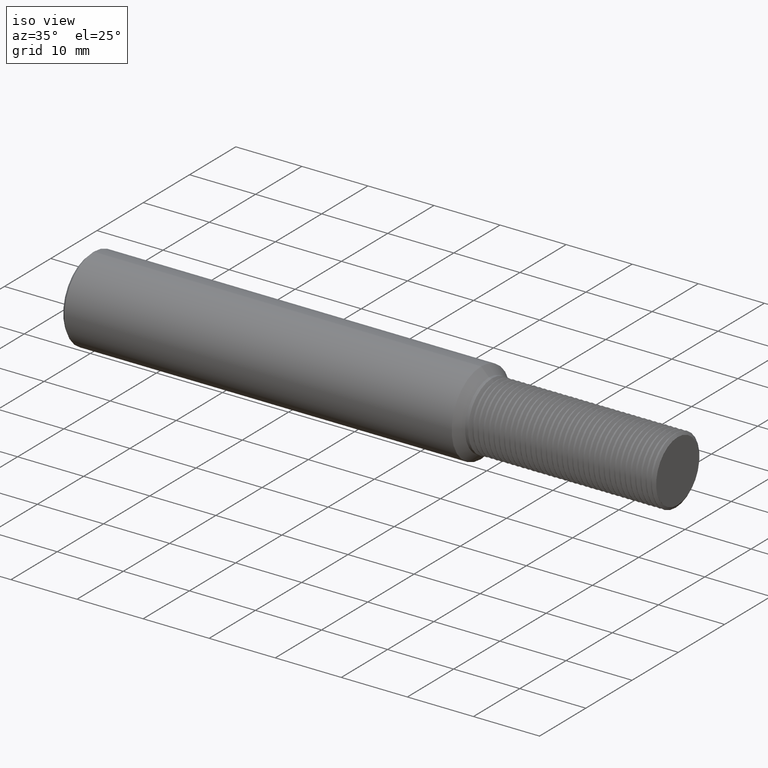
[diagram: clean part render]
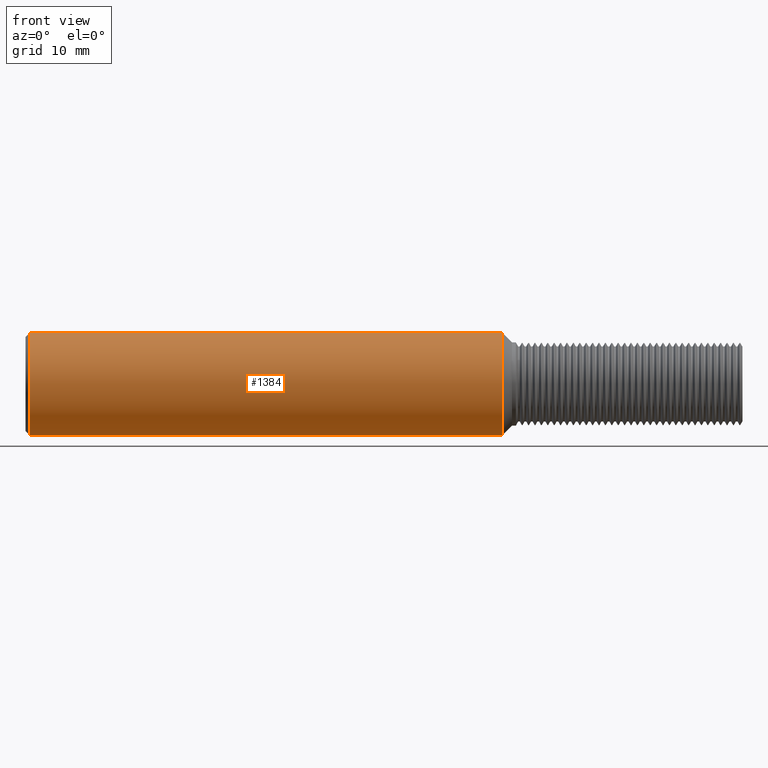
[diagram: tour spotlight — one face highlighted and labeled with its STEP entity id]
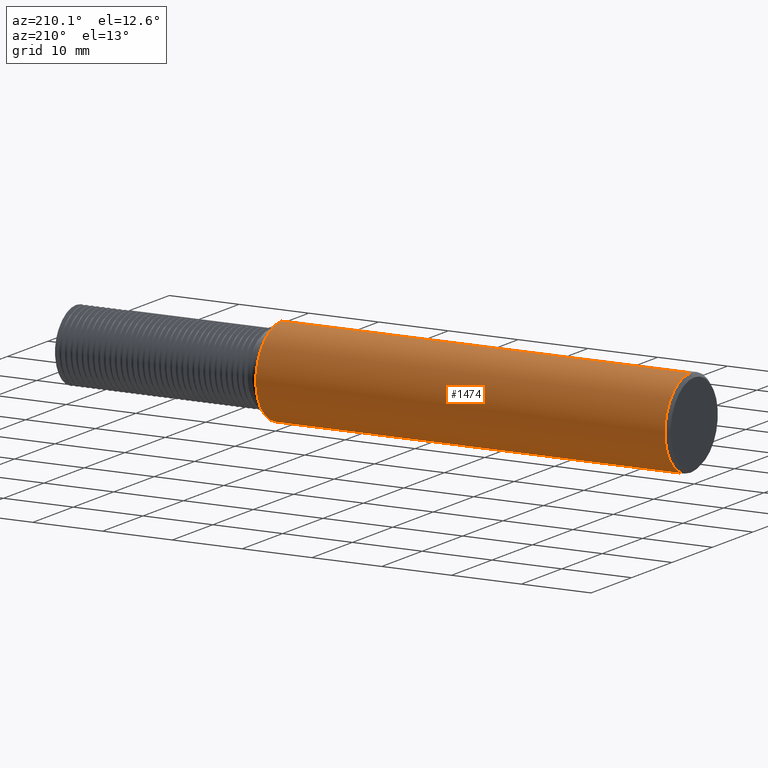
[diagram: tour spotlight — one face highlighted and labeled with its STEP entity id]
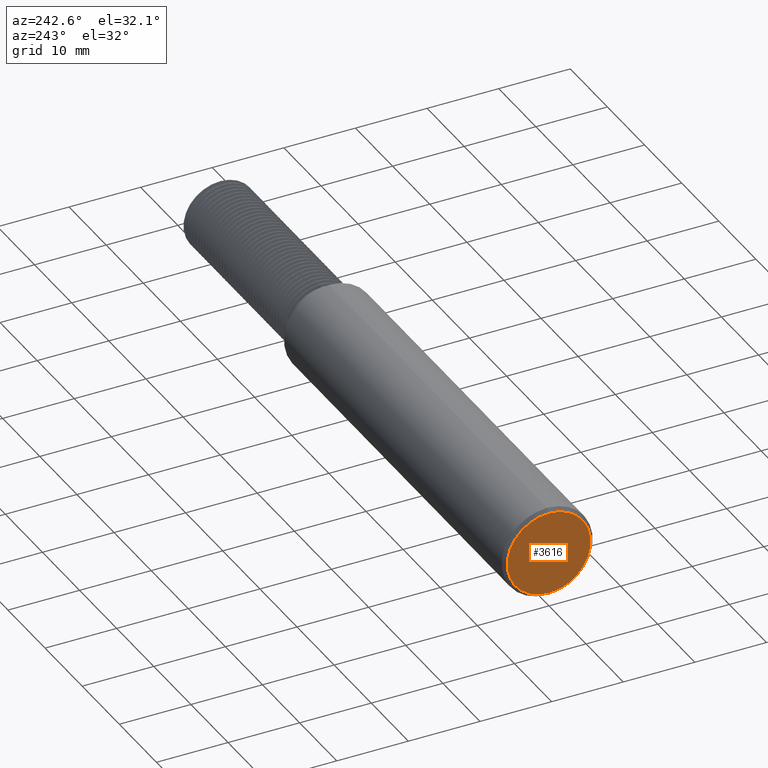
[diagram: tour spotlight — one face highlighted and labeled with its STEP entity id]
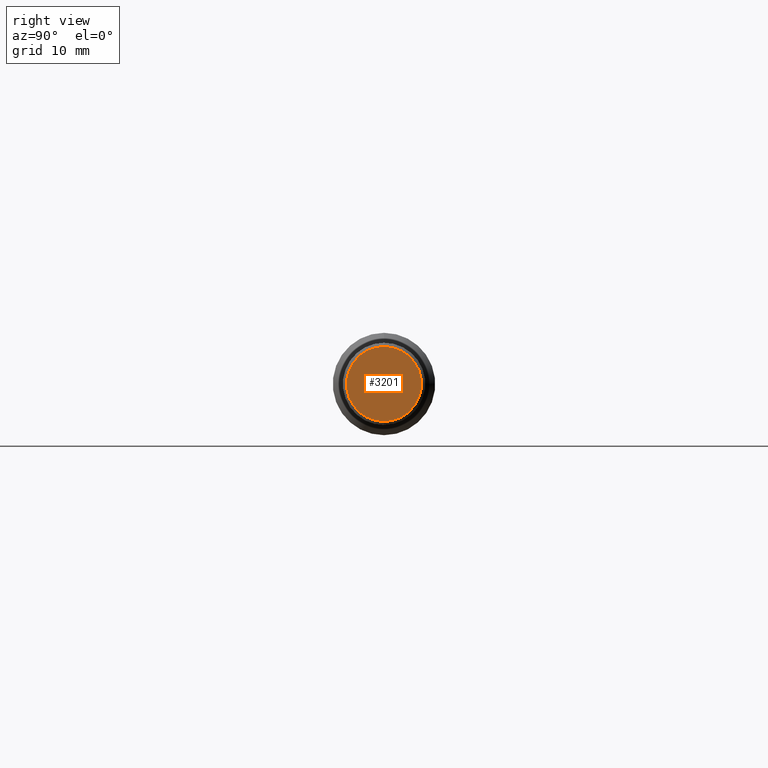
[diagram: tour spotlight — one face highlighted and labeled with its STEP entity id]
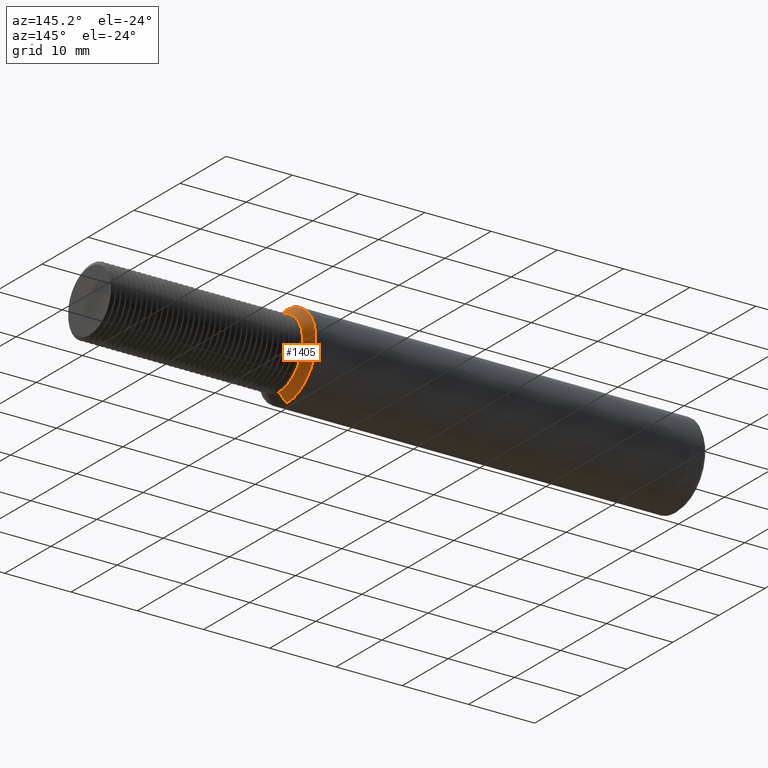
[diagram: tour spotlight — one face highlighted and labeled with its STEP entity id]
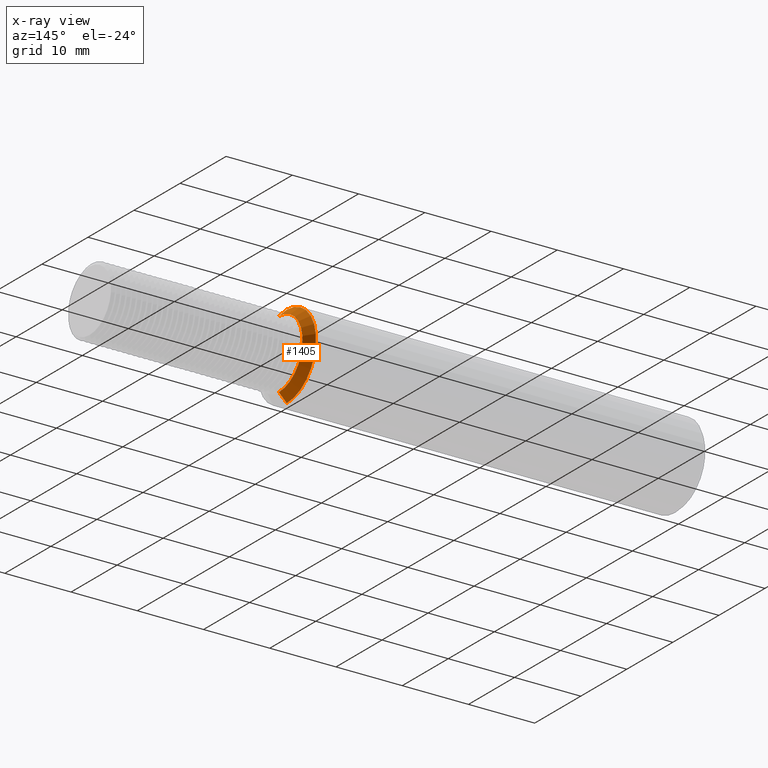
[diagram: x-ray of the same camera — body ghosted, this tour face saturated]
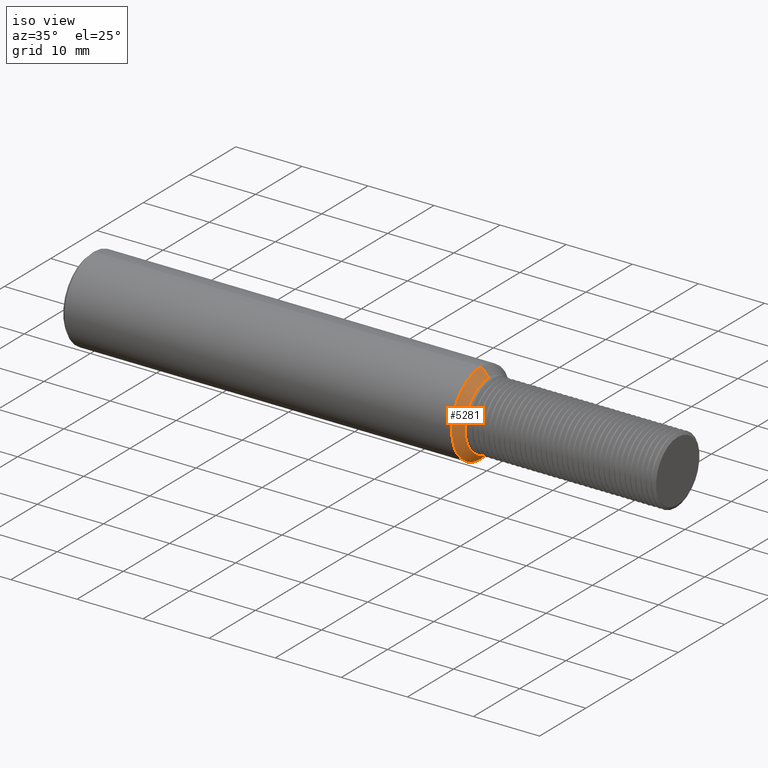
[diagram: tour spotlight — one face highlighted and labeled with its STEP entity id]
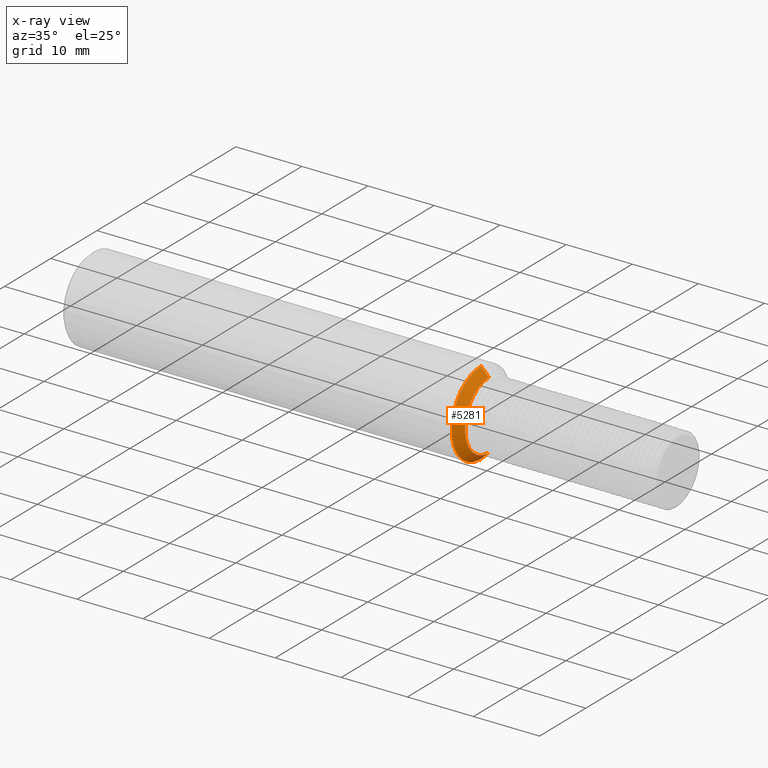
[diagram: x-ray of the same camera — body ghosted, this tour face saturated]
A machine part: a face-by-face anatomy tour. The part has 294 B-rep faces; the first image is the clean iso view, then the 6 largest visible faces are spotlighted one at a time (largest first), each with its STEP entity span.

Face 1 — front view, entity #1384. In plain terms, the highlighted cylindrical surface (partial cylindrical patch) has radius 6.3462 mm, axis along (-1, -0, -0).
Definition (entity closure, byte-faithful):
#20 = ORIENTED_EDGE ( 'NONE', *, *, #6231, .T. ) ;
#340 = DIRECTION ( 'NONE',  ( 0.000000000000000000, 0.000000000000000000, 1.000000000000000000 ) ) ;
#411 = FACE_OUTER_BOUND ( 'NONE', #6787, .T. ) ;
#517 = CARTESIAN_POINT ( 'NONE',  ( 0.000000000000000000, 0.000000000000000000, 0.2498499999999999888 ) ) ;
#588 = EDGE_CURVE ( 'NONE', #4362, #5510, #7309, .T. ) ;
#894 = CARTESIAN_POINT ( 'NONE',  ( 0.02000000000000009409, 0.000000000000000000, 0.000000000000000000 ) ) ;
#950 = DIRECTION ( 'NONE',  ( 0.000000000000000000, 0.000000000000000000, 1.000000000000000000 ) ) ;
#1120 = CARTESIAN_POINT ( 'NONE',  ( 0.000000000000000000, 3.059780027669661931E-17, -0.2498499999999999888 ) ) ;
#1384 = ADVANCED_FACE ( 'NONE', ( #411 ), #6675, .T. ) ;
#1386 = VERTEX_POINT ( 'NONE', #5570 ) ;
#1481 = AXIS2_PLACEMENT_3D ( 'NONE', #2731, #3296, #340 ) ;
#1490 = AXIS2_PLACEMENT_3D ( 'NONE', #5613, #2052, #950 ) ;
#1873 = CARTESIAN_POINT ( 'NONE',  ( 0.02000000000000009409, 0.000000000000000000, -0.2498499999999999888 ) ) ;
#2052 = DIRECTION ( 'NONE',  ( -1.000000000000000000, -0.000000000000000000, -0.000000000000000000 ) ) ;
#2099 = CIRCLE ( 'NONE', #1490, 0.2498499999999999888 ) ;
#2139 = EDGE_CURVE ( 'NONE', #6442, #5510, #7051, .T. ) ;
#2182 = DIRECTION ( 'NONE',  ( -1.000000000000000000, -0.000000000000000000, -0.000000000000000000 ) ) ;
#2406 = ORIENTED_EDGE ( 'NONE', *, *, #2139, .T. ) ;
#2731 = CARTESIAN_POINT ( 'NONE',  ( 0.000000000000000000, 0.000000000000000000, 0.000000000000000000 ) ) ;
#3296 = DIRECTION ( 'NONE',  ( -1.000000000000000000, -0.000000000000000000, -0.000000000000000000 ) ) ;
#3840 = DIRECTION ( 'NONE',  ( 0.000000000000000000, 0.000000000000000000, -1.000000000000000000 ) ) ;
#3845 = AXIS2_PLACEMENT_3D ( 'NONE', #894, #4846, #3840 ) ;
#4362 = VERTEX_POINT ( 'NONE', #5284 ) ;
#4846 = DIRECTION ( 'NONE',  ( 1.000000000000000000, 0.000000000000000000, 0.000000000000000000 ) ) ;
#5284 = CARTESIAN_POINT ( 'NONE',  ( 2.328149999999999942, 3.059780027669661931E-17, -0.2498499999999999888 ) ) ;
#5510 = VERTEX_POINT ( 'NONE', #1873 ) ;
#5570 = CARTESIAN_POINT ( 'NONE',  ( 2.328149999999999942, 0.000000000000000000, 0.2498499999999999888 ) ) ;
#5613 = CARTESIAN_POINT ( 'NONE',  ( 2.328149999999999942, 0.000000000000000000, 0.000000000000000000 ) ) ;
#5641 = LINE ( 'NONE', #517, #7118 ) ;
#5684 = CARTESIAN_POINT ( 'NONE',  ( 0.02000000000000009409, 3.059780027669661931E-17, 0.2498499999999999888 ) ) ;
#5718 = DIRECTION ( 'NONE',  ( -1.000000000000000000, -0.000000000000000000, -0.000000000000000000 ) ) ;
#6231 = EDGE_CURVE ( 'NONE', #4362, #1386, #2099, .T. ) ;
#6232 = ORIENTED_EDGE ( 'NONE', *, *, #588, .F. ) ;
#6442 = VERTEX_POINT ( 'NONE', #5684 ) ;
#6675 = CYLINDRICAL_SURFACE ( 'NONE', #1481, 0.2498499999999999888 ) ;
#6787 = EDGE_LOOP ( 'NONE', ( #6232, #20, #7048, #2406 ) ) ;
#7048 = ORIENTED_EDGE ( 'NONE', *, *, #7336, .T. ) ;
#7051 = CIRCLE ( 'NONE', #3845, 0.2498499999999999888 ) ;
#7118 = VECTOR ( 'NONE', #5718, 39.37007874015748143 ) ;
#7180 = VECTOR ( 'NONE', #2182, 39.37007874015748143 ) ;
#7309 = LINE ( 'NONE', #1120, #7180 ) ;
#7336 = EDGE_CURVE ( 'NONE', #1386, #6442, #5641, .T. ) ;

Face 2 — auxiliary view, entity #1474. In plain terms, the highlighted cylindrical surface (partial cylindrical patch) has radius 6.3462 mm, axis along (-1, -0, -0).
Definition (entity closure, byte-faithful):
#374 = CIRCLE ( 'NONE', #3031, 0.2498499999999999888 ) ;
#517 = CARTESIAN_POINT ( 'NONE',  ( 0.000000000000000000, 0.000000000000000000, 0.2498499999999999888 ) ) ;
#521 = CARTESIAN_POINT ( 'NONE',  ( 0.000000000000000000, 0.000000000000000000, 0.000000000000000000 ) ) ;
#582 = ORIENTED_EDGE ( 'NONE', *, *, #588, .T. ) ;
#588 = EDGE_CURVE ( 'NONE', #4362, #5510, #7309, .T. ) ;
#1120 = CARTESIAN_POINT ( 'NONE',  ( 0.000000000000000000, 3.059780027669661931E-17, -0.2498499999999999888 ) ) ;
#1254 = CIRCLE ( 'NONE', #5454, 0.2498499999999999888 ) ;
#1386 = VERTEX_POINT ( 'NONE', #5570 ) ;
#1474 = ADVANCED_FACE ( 'NONE', ( #6336 ), #2393, .T. ) ;
#1873 = CARTESIAN_POINT ( 'NONE',  ( 0.02000000000000009409, 0.000000000000000000, -0.2498499999999999888 ) ) ;
#2182 = DIRECTION ( 'NONE',  ( -1.000000000000000000, -0.000000000000000000, -0.000000000000000000 ) ) ;
#2247 = DIRECTION ( 'NONE',  ( -1.000000000000000000, -0.000000000000000000, -0.000000000000000000 ) ) ;
#2307 = EDGE_LOOP ( 'NONE', ( #2876, #582, #7320, #5963 ) ) ;
#2393 = CYLINDRICAL_SURFACE ( 'NONE', #5560, 0.2498499999999999888 ) ;
#2876 = ORIENTED_EDGE ( 'NONE', *, *, #7158, .T. ) ;
#3031 = AXIS2_PLACEMENT_3D ( 'NONE', #3825, #6091, #6910 ) ;
#3475 = EDGE_CURVE ( 'NONE', #5510, #6442, #374, .T. ) ;
#3507 = DIRECTION ( 'NONE',  ( 0.000000000000000000, 0.000000000000000000, 1.000000000000000000 ) ) ;
#3825 = CARTESIAN_POINT ( 'NONE',  ( 0.02000000000000009409, 0.000000000000000000, 0.000000000000000000 ) ) ;
#4362 = VERTEX_POINT ( 'NONE', #5284 ) ;
#5284 = CARTESIAN_POINT ( 'NONE',  ( 2.328149999999999942, 3.059780027669661931E-17, -0.2498499999999999888 ) ) ;
#5454 = AXIS2_PLACEMENT_3D ( 'NONE', #7264, #2247, #6797 ) ;
#5510 = VERTEX_POINT ( 'NONE', #1873 ) ;
#5560 = AXIS2_PLACEMENT_3D ( 'NONE', #521, #6826, #3507 ) ;
#5570 = CARTESIAN_POINT ( 'NONE',  ( 2.328149999999999942, 0.000000000000000000, 0.2498499999999999888 ) ) ;
#5641 = LINE ( 'NONE', #517, #7118 ) ;
#5684 = CARTESIAN_POINT ( 'NONE',  ( 0.02000000000000009409, 3.059780027669661931E-17, 0.2498499999999999888 ) ) ;
#5718 = DIRECTION ( 'NONE',  ( -1.000000000000000000, -0.000000000000000000, -0.000000000000000000 ) ) ;
#5963 = ORIENTED_EDGE ( 'NONE', *, *, #7336, .F. ) ;
#6091 = DIRECTION ( 'NONE',  ( 1.000000000000000000, 0.000000000000000000, 0.000000000000000000 ) ) ;
#6336 = FACE_OUTER_BOUND ( 'NONE', #2307, .T. ) ;
#6442 = VERTEX_POINT ( 'NONE', #5684 ) ;
#6797 = DIRECTION ( 'NONE',  ( 0.000000000000000000, 0.000000000000000000, 1.000000000000000000 ) ) ;
#6826 = DIRECTION ( 'NONE',  ( -1.000000000000000000, -0.000000000000000000, -0.000000000000000000 ) ) ;
#6910 = DIRECTION ( 'NONE',  ( 0.000000000000000000, 0.000000000000000000, -1.000000000000000000 ) ) ;
#7118 = VECTOR ( 'NONE', #5718, 39.37007874015748143 ) ;
#7158 = EDGE_CURVE ( 'NONE', #1386, #4362, #1254, .T. ) ;
#7180 = VECTOR ( 'NONE', #2182, 39.37007874015748143 ) ;
#7264 = CARTESIAN_POINT ( 'NONE',  ( 2.328149999999999942, 0.000000000000000000, 0.000000000000000000 ) ) ;
#7309 = LINE ( 'NONE', #1120, #7180 ) ;
#7320 = ORIENTED_EDGE ( 'NONE', *, *, #3475, .T. ) ;
#7336 = EDGE_CURVE ( 'NONE', #1386, #6442, #5641, .T. ) ;

Face 3 — auxiliary view, entity #3616. In plain terms, the highlighted planar face has unit normal (1, 0, 0).
Definition (entity closure, byte-faithful):
#21 = VERTEX_POINT ( 'NONE', #3710 ) ;
#891 = DIRECTION ( 'NONE',  ( 0.000000000000000000, 0.000000000000000000, -1.000000000000000000 ) ) ;
#932 = EDGE_CURVE ( 'NONE', #3416, #21, #2320, .T. ) ;
#973 = EDGE_LOOP ( 'NONE', ( #2195, #6402 ) ) ;
#1599 = CARTESIAN_POINT ( 'NONE',  ( 0.000000000000000000, 0.000000000000000000, 0.000000000000000000 ) ) ;
#1669 = CARTESIAN_POINT ( 'NONE',  ( 0.000000000000000000, 0.000000000000000000, 0.000000000000000000 ) ) ;
#1708 = DIRECTION ( 'NONE',  ( 1.000000000000000000, 0.000000000000000000, 0.000000000000000000 ) ) ;
#1817 = PLANE ( 'NONE',  #3037 ) ;
#2106 = CARTESIAN_POINT ( 'NONE',  ( 0.000000000000000000, 0.000000000000000000, 0.000000000000000000 ) ) ;
#2195 = ORIENTED_EDGE ( 'NONE', *, *, #4489, .T. ) ;
#2229 = CIRCLE ( 'NONE', #6992, 0.2298500000000002763 ) ;
#2320 = CIRCLE ( 'NONE', #6483, 0.2298500000000002763 ) ;
#3037 = AXIS2_PLACEMENT_3D ( 'NONE', #1669, #1708, #4011 ) ;
#3416 = VERTEX_POINT ( 'NONE', #4987 ) ;
#3616 = ADVANCED_FACE ( 'NONE', ( #5160 ), #1817, .F. ) ;
#3686 = DIRECTION ( 'NONE',  ( -1.000000000000000000, -0.000000000000000000, -0.000000000000000000 ) ) ;
#3710 = CARTESIAN_POINT ( 'NONE',  ( 0.000000000000000000, 0.000000000000000000, -0.2298500000000002763 ) ) ;
#4011 = DIRECTION ( 'NONE',  ( 0.000000000000000000, 0.000000000000000000, -1.000000000000000000 ) ) ;
#4489 = EDGE_CURVE ( 'NONE', #21, #3416, #2229, .T. ) ;
#4987 = CARTESIAN_POINT ( 'NONE',  ( 0.000000000000000000, 2.937315347754928730E-17, 0.2298500000000002763 ) ) ;
#5160 = FACE_OUTER_BOUND ( 'NONE', #973, .T. ) ;
#6402 = ORIENTED_EDGE ( 'NONE', *, *, #932, .T. ) ;
#6483 = AXIS2_PLACEMENT_3D ( 'NONE', #2106, #3686, #891 ) ;
#6618 = DIRECTION ( 'NONE',  ( -1.000000000000000000, -0.000000000000000000, -0.000000000000000000 ) ) ;
#6656 = DIRECTION ( 'NONE',  ( 0.000000000000000000, 0.000000000000000000, -1.000000000000000000 ) ) ;
#6992 = AXIS2_PLACEMENT_3D ( 'NONE', #1599, #6618, #6656 ) ;

Face 4 — right view, entity #3201. In plain terms, the highlighted planar face has unit normal (-1, 0, -0).
Definition (entity closure, byte-faithful):
#307 = CIRCLE ( 'NONE', #1879, 0.1828615869927601167 ) ;
#501 = DIRECTION ( 'NONE',  ( 0.000000000000000000, 0.000000000000000000, 1.000000000000000000 ) ) ;
#1161 = ORIENTED_EDGE ( 'NONE', *, *, #5433, .F. ) ;
#1372 = VERTEX_POINT ( 'NONE', #4421 ) ;
#1879 = AXIS2_PLACEMENT_3D ( 'NONE', #7340, #6211, #501 ) ;
#2792 = DIRECTION ( 'NONE',  ( -0.000000000000000000, 0.000000000000000000, 1.000000000000000000 ) ) ;
#3201 = ADVANCED_FACE ( 'NONE', ( #6290 ), #4518, .F. ) ;
#4179 = CARTESIAN_POINT ( 'NONE',  ( 3.500000000000000000, 0.000000000000000000, 0.000000000000000000 ) ) ;
#4317 = ORIENTED_EDGE ( 'NONE', *, *, #7015, .F. ) ;
#4409 = EDGE_LOOP ( 'NONE', ( #4317, #1161 ) ) ;
#4421 = CARTESIAN_POINT ( 'NONE',  ( 3.500000000000000000, 2.239408571976889543E-17, -0.1828615869927601167 ) ) ;
#4518 = PLANE ( 'NONE',  #4834 ) ;
#4628 = CARTESIAN_POINT ( 'NONE',  ( 3.500000000000000000, 0.2030000000000000138, 0.000000000000000000 ) ) ;
#4729 = CIRCLE ( 'NONE', #5682, 0.1828615869927601167 ) ;
#4774 = DIRECTION ( 'NONE',  ( -1.000000000000000000, -0.000000000000000000, -0.000000000000000000 ) ) ;
#4834 = AXIS2_PLACEMENT_3D ( 'NONE', #4628, #6775, #2792 ) ;
#5256 = DIRECTION ( 'NONE',  ( 0.000000000000000000, 0.000000000000000000, 1.000000000000000000 ) ) ;
#5433 = EDGE_CURVE ( 'NONE', #1372, #6447, #307, .T. ) ;
#5682 = AXIS2_PLACEMENT_3D ( 'NONE', #4179, #4774, #5256 ) ;
#6211 = DIRECTION ( 'NONE',  ( -1.000000000000000000, -0.000000000000000000, -0.000000000000000000 ) ) ;
#6265 = CARTESIAN_POINT ( 'NONE',  ( 3.500000000000000000, 0.000000000000000000, 0.1828615869927601167 ) ) ;
#6290 = FACE_OUTER_BOUND ( 'NONE', #4409, .T. ) ;
#6447 = VERTEX_POINT ( 'NONE', #6265 ) ;
#6775 = DIRECTION ( 'NONE',  ( -1.000000000000000000, 0.000000000000000000, -0.000000000000000000 ) ) ;
#7015 = EDGE_CURVE ( 'NONE', #6447, #1372, #4729, .T. ) ;
#7340 = CARTESIAN_POINT ( 'NONE',  ( 3.500000000000000000, 0.000000000000000000, 0.000000000000000000 ) ) ;

Face 5 — auxiliary view, entity #1405. An x-ray twin of the same camera follows (body ghosted, this face saturated) — the face is partly hidden behind the body. In plain terms, the highlighted conical surface has half-angle 45 deg.
Definition (entity closure, byte-faithful):
#39 = DIRECTION ( 'NONE',  ( -1.000000000000000000, -0.000000000000000000, -0.000000000000000000 ) ) ;
#68 = VERTEX_POINT ( 'NONE', #5473 ) ;
#81 = FACE_OUTER_BOUND ( 'NONE', #6090, .T. ) ;
#202 = DIRECTION ( 'NONE',  ( -1.000000000000000000, -0.000000000000000000, -0.000000000000000000 ) ) ;
#226 = EDGE_CURVE ( 'NONE', #68, #4362, #3295, .T. ) ;
#713 = LINE ( 'NONE', #3619, #2119 ) ;
#1254 = CIRCLE ( 'NONE', #5454, 0.2498499999999999888 ) ;
#1386 = VERTEX_POINT ( 'NONE', #5570 ) ;
#1405 = ADVANCED_FACE ( 'NONE', ( #81 ), #4490, .T. ) ;
#1428 = CARTESIAN_POINT ( 'NONE',  ( 2.374999999999999556, 0.000000000000000000, 0.2030000000000000138 ) ) ;
#1743 = DIRECTION ( 'NONE',  ( 0.000000000000000000, 0.000000000000000000, 1.000000000000000000 ) ) ;
#1997 = ORIENTED_EDGE ( 'NONE', *, *, #226, .T. ) ;
#2119 = VECTOR ( 'NONE', #5307, 39.37007874015748143 ) ;
#2247 = DIRECTION ( 'NONE',  ( -1.000000000000000000, -0.000000000000000000, -0.000000000000000000 ) ) ;
#2376 = EDGE_CURVE ( 'NONE', #4275, #68, #7229, .T. ) ;
#2730 = CARTESIAN_POINT ( 'NONE',  ( 2.374999999999999556, 2.486033002269127361E-17, -0.2030000000000000138 ) ) ;
#2878 = CARTESIAN_POINT ( 'NONE',  ( 2.374999999999999556, 0.000000000000000000, 0.000000000000000000 ) ) ;
#3077 = ORIENTED_EDGE ( 'NONE', *, *, #7158, .F. ) ;
#3081 = CARTESIAN_POINT ( 'NONE',  ( 2.374999999999999556, 0.000000000000000000, 0.000000000000000000 ) ) ;
#3295 = LINE ( 'NONE', #2730, #6208 ) ;
#3619 = CARTESIAN_POINT ( 'NONE',  ( 2.374999999999999556, 0.000000000000000000, 0.2030000000000000138 ) ) ;
#4275 = VERTEX_POINT ( 'NONE', #1428 ) ;
#4362 = VERTEX_POINT ( 'NONE', #5284 ) ;
#4490 = CONICAL_SURFACE ( 'NONE', #7343, 0.2030000000000000138, 0.7853981633974501664 ) ;
#5238 = EDGE_CURVE ( 'NONE', #4275, #1386, #713, .T. ) ;
#5250 = DIRECTION ( 'NONE',  ( 0.000000000000000000, 0.000000000000000000, 1.000000000000000000 ) ) ;
#5284 = CARTESIAN_POINT ( 'NONE',  ( 2.328149999999999942, 3.059780027669661931E-17, -0.2498499999999999888 ) ) ;
#5307 = DIRECTION ( 'NONE',  ( -0.7071067811865462405, 0.000000000000000000, 0.7071067811865487940 ) ) ;
#5454 = AXIS2_PLACEMENT_3D ( 'NONE', #7264, #2247, #6797 ) ;
#5473 = CARTESIAN_POINT ( 'NONE',  ( 2.374999999999999556, 2.772906514969394800E-17, -0.2030000000000000138 ) ) ;
#5570 = CARTESIAN_POINT ( 'NONE',  ( 2.328149999999999942, 0.000000000000000000, 0.2498499999999999888 ) ) ;
#6051 = DIRECTION ( 'NONE',  ( -0.7071067811865462405, 8.659560562354948882E-17, -0.7071067811865487940 ) ) ;
#6090 = EDGE_LOOP ( 'NONE', ( #7282, #1997, #3077, #6879 ) ) ;
#6208 = VECTOR ( 'NONE', #6051, 39.37007874015748143 ) ;
#6510 = AXIS2_PLACEMENT_3D ( 'NONE', #3081, #202, #5250 ) ;
#6797 = DIRECTION ( 'NONE',  ( 0.000000000000000000, 0.000000000000000000, 1.000000000000000000 ) ) ;
#6879 = ORIENTED_EDGE ( 'NONE', *, *, #5238, .F. ) ;
#7158 = EDGE_CURVE ( 'NONE', #1386, #4362, #1254, .T. ) ;
#7229 = CIRCLE ( 'NONE', #6510, 0.2030000000000000138 ) ;
#7264 = CARTESIAN_POINT ( 'NONE',  ( 2.328149999999999942, 0.000000000000000000, 0.000000000000000000 ) ) ;
#7282 = ORIENTED_EDGE ( 'NONE', *, *, #2376, .T. ) ;
#7343 = AXIS2_PLACEMENT_3D ( 'NONE', #2878, #39, #1743 ) ;

Face 6 — iso view, entity #5281. An x-ray twin of the same camera follows (body ghosted, this face saturated) — the face is partly hidden behind the body. In plain terms, the highlighted conical surface has half-angle 45 deg.
Definition (entity closure, byte-faithful):
#68 = VERTEX_POINT ( 'NONE', #5473 ) ;
#183 = AXIS2_PLACEMENT_3D ( 'NONE', #4825, #6941, #2956 ) ;
#226 = EDGE_CURVE ( 'NONE', #68, #4362, #3295, .T. ) ;
#633 = ORIENTED_EDGE ( 'NONE', *, *, #6176, .T. ) ;
#713 = LINE ( 'NONE', #3619, #2119 ) ;
#950 = DIRECTION ( 'NONE',  ( 0.000000000000000000, 0.000000000000000000, 1.000000000000000000 ) ) ;
#998 = CIRCLE ( 'NONE', #4382, 0.2030000000000000138 ) ;
#1386 = VERTEX_POINT ( 'NONE', #5570 ) ;
#1428 = CARTESIAN_POINT ( 'NONE',  ( 2.374999999999999556, 0.000000000000000000, 0.2030000000000000138 ) ) ;
#1490 = AXIS2_PLACEMENT_3D ( 'NONE', #5613, #2052, #950 ) ;
#2052 = DIRECTION ( 'NONE',  ( -1.000000000000000000, -0.000000000000000000, -0.000000000000000000 ) ) ;
#2099 = CIRCLE ( 'NONE', #1490, 0.2498499999999999888 ) ;
#2119 = VECTOR ( 'NONE', #5307, 39.37007874015748143 ) ;
#2538 = FACE_OUTER_BOUND ( 'NONE', #4658, .T. ) ;
#2586 = DIRECTION ( 'NONE',  ( -1.000000000000000000, -0.000000000000000000, -0.000000000000000000 ) ) ;
#2730 = CARTESIAN_POINT ( 'NONE',  ( 2.374999999999999556, 2.486033002269127361E-17, -0.2030000000000000138 ) ) ;
#2956 = DIRECTION ( 'NONE',  ( 0.000000000000000000, 0.000000000000000000, 1.000000000000000000 ) ) ;
#3030 = DIRECTION ( 'NONE',  ( 0.000000000000000000, 0.000000000000000000, 1.000000000000000000 ) ) ;
#3295 = LINE ( 'NONE', #2730, #6208 ) ;
#3619 = CARTESIAN_POINT ( 'NONE',  ( 2.374999999999999556, 0.000000000000000000, 0.2030000000000000138 ) ) ;
#4275 = VERTEX_POINT ( 'NONE', #1428 ) ;
#4307 = CARTESIAN_POINT ( 'NONE',  ( 2.374999999999999556, 0.000000000000000000, 0.000000000000000000 ) ) ;
#4362 = VERTEX_POINT ( 'NONE', #5284 ) ;
#4382 = AXIS2_PLACEMENT_3D ( 'NONE', #4307, #2586, #3030 ) ;
#4658 = EDGE_LOOP ( 'NONE', ( #7074, #633, #7036, #7113 ) ) ;
#4825 = CARTESIAN_POINT ( 'NONE',  ( 2.374999999999999556, 0.000000000000000000, 0.000000000000000000 ) ) ;
#5238 = EDGE_CURVE ( 'NONE', #4275, #1386, #713, .T. ) ;
#5281 = ADVANCED_FACE ( 'NONE', ( #2538 ), #7255, .T. ) ;
#5284 = CARTESIAN_POINT ( 'NONE',  ( 2.328149999999999942, 3.059780027669661931E-17, -0.2498499999999999888 ) ) ;
#5307 = DIRECTION ( 'NONE',  ( -0.7071067811865462405, 0.000000000000000000, 0.7071067811865487940 ) ) ;
#5473 = CARTESIAN_POINT ( 'NONE',  ( 2.374999999999999556, 2.772906514969394800E-17, -0.2030000000000000138 ) ) ;
#5570 = CARTESIAN_POINT ( 'NONE',  ( 2.328149999999999942, 0.000000000000000000, 0.2498499999999999888 ) ) ;
#5613 = CARTESIAN_POINT ( 'NONE',  ( 2.328149999999999942, 0.000000000000000000, 0.000000000000000000 ) ) ;
#6051 = DIRECTION ( 'NONE',  ( -0.7071067811865462405, 8.659560562354948882E-17, -0.7071067811865487940 ) ) ;
#6176 = EDGE_CURVE ( 'NONE', #68, #4275, #998, .T. ) ;
#6208 = VECTOR ( 'NONE', #6051, 39.37007874015748143 ) ;
#6231 = EDGE_CURVE ( 'NONE', #4362, #1386, #2099, .T. ) ;
#6941 = DIRECTION ( 'NONE',  ( -1.000000000000000000, -0.000000000000000000, -0.000000000000000000 ) ) ;
#7036 = ORIENTED_EDGE ( 'NONE', *, *, #5238, .T. ) ;
#7074 = ORIENTED_EDGE ( 'NONE', *, *, #226, .F. ) ;
#7113 = ORIENTED_EDGE ( 'NONE', *, *, #6231, .F. ) ;
#7255 = CONICAL_SURFACE ( 'NONE', #183, 0.2030000000000000138, 0.7853981633974501664 ) ;